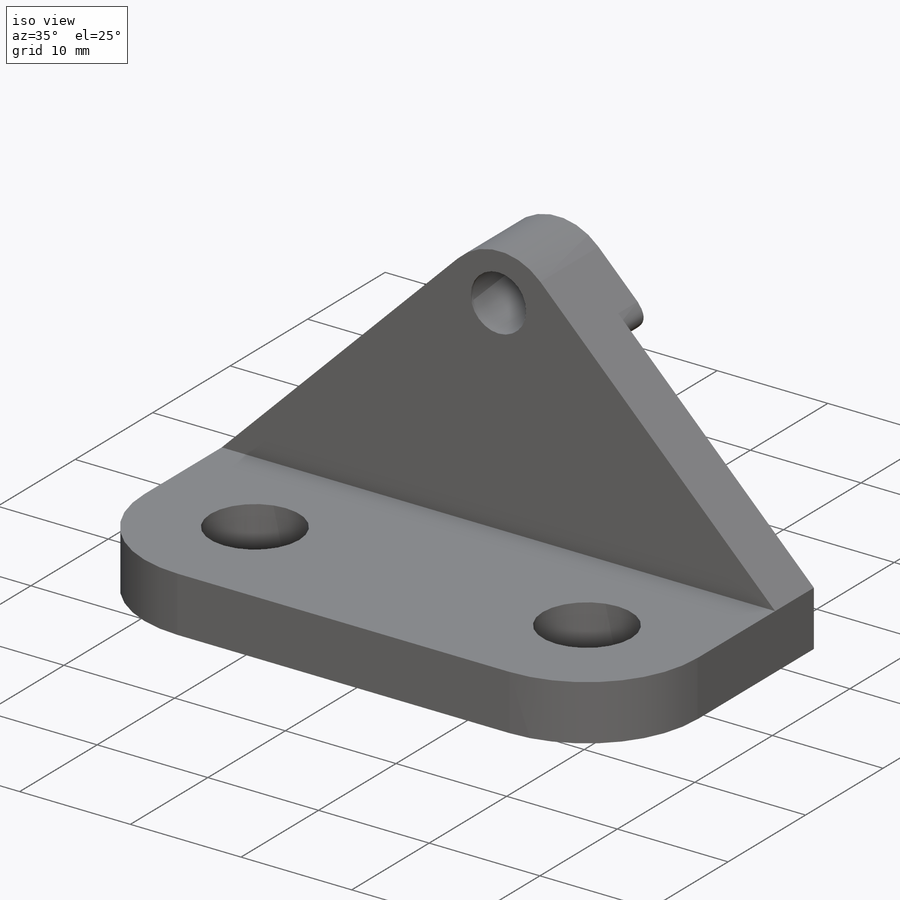
[diagram: iso view]
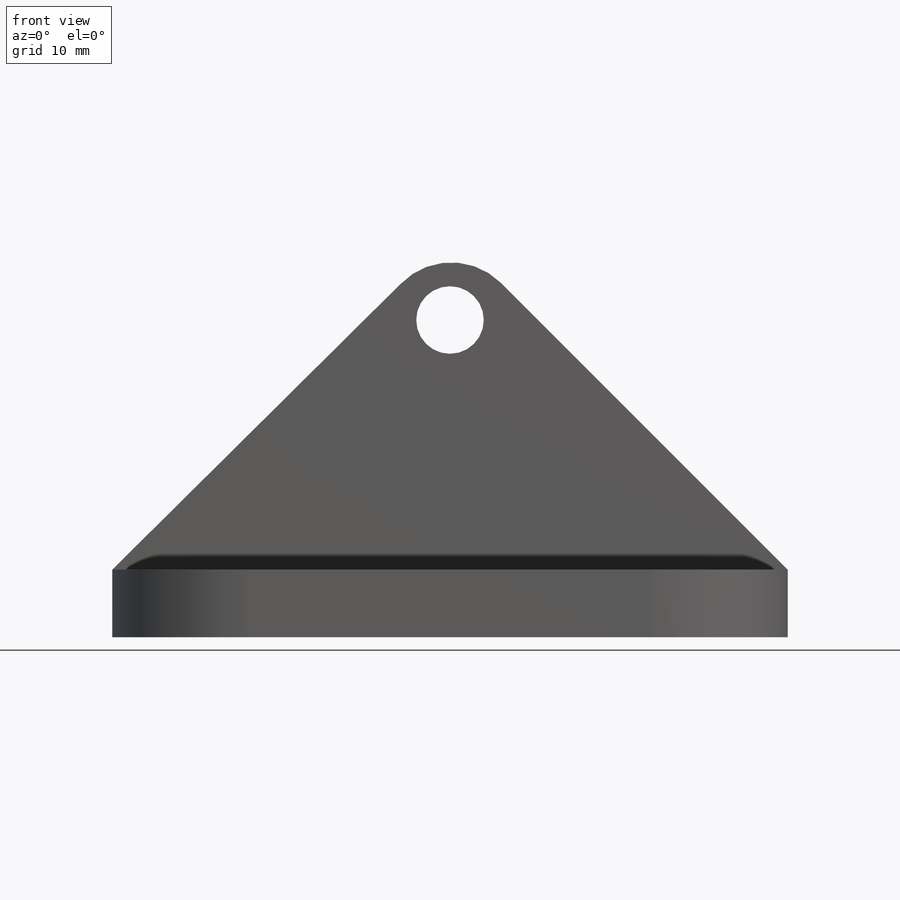
[diagram: front view]
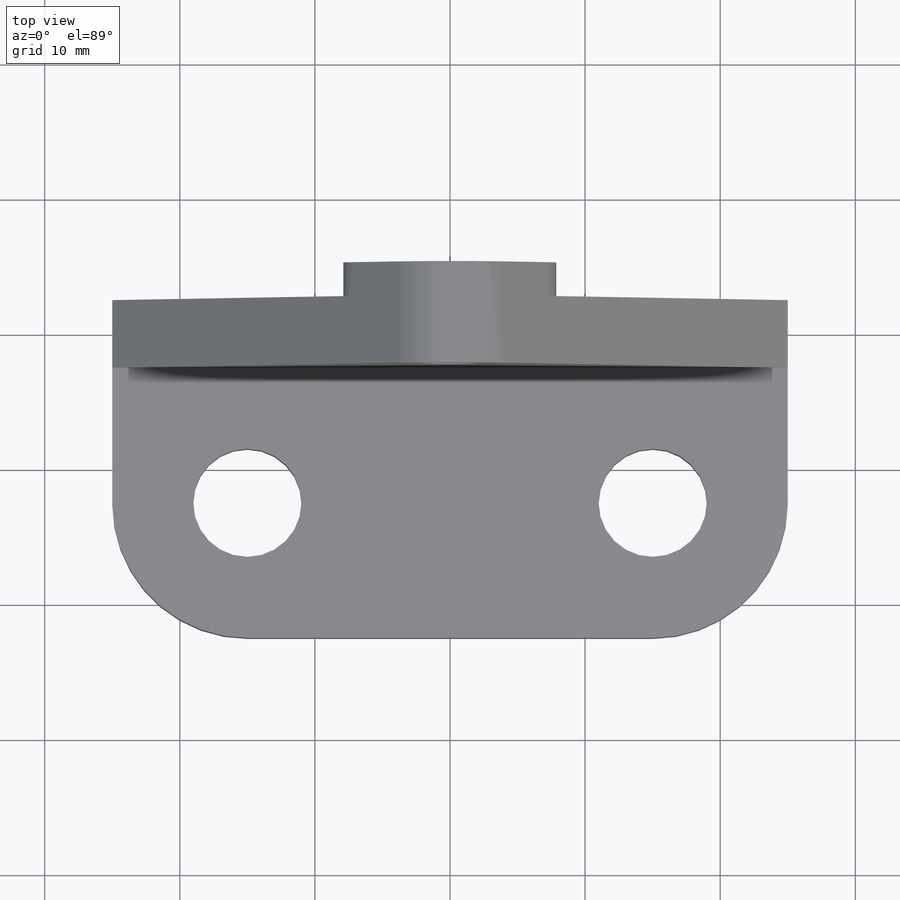
[diagram: top view]
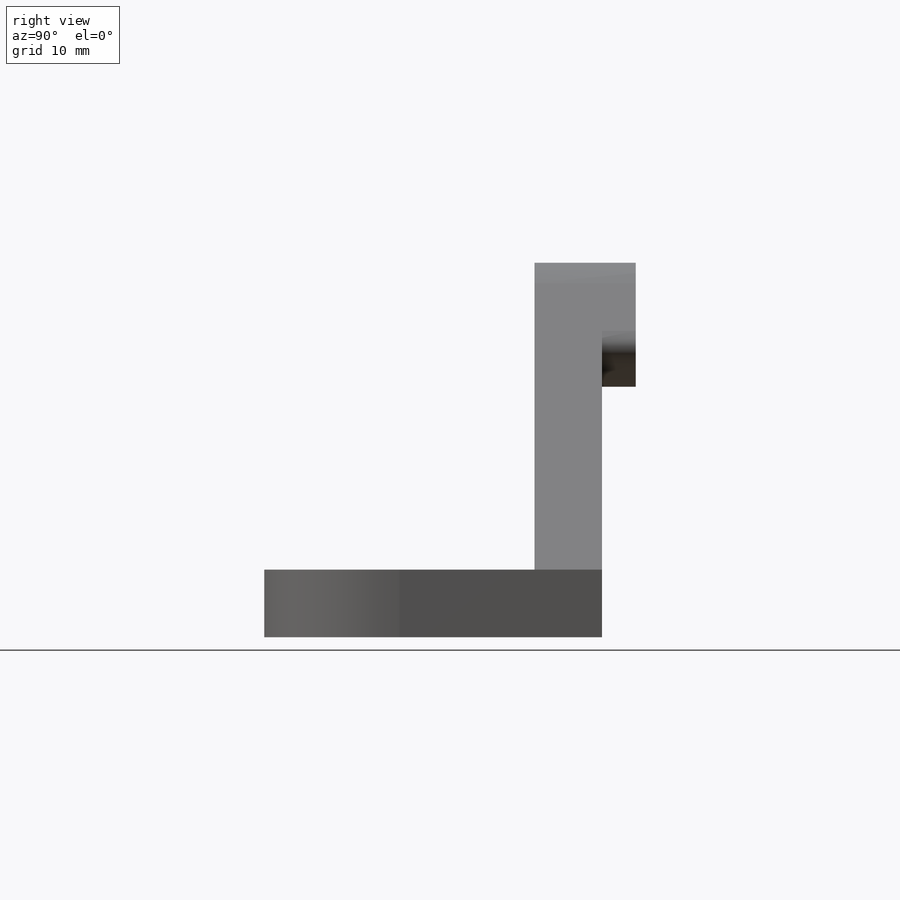
[diagram: right view]
SOLIDWORKS PART (.sldprt)
format: sldprt  version: not decoded by parser v0  size: 216,576 bytes
history: native  units: mm
features: sketch x5, extrude x3, cut_extrude x2, material x1, fillet x1 (+13 scaffold rows collapsed)
feature tree (25):
  scaffold x13  (default folders/planes/origin — collapsed)
  material  "Material <not specified>"
  sketch  "Sketch1"  dims[c1.D3=8.0mm c1.D4=8.0mm c1.D6=8.0mm c1.D5=8.0mm c2.D3=8.0mm c2.D4=8.0mm c2.D5=8.0mm c2.D6=8.0mm c2.D7=8.0mm c2.D8=8.0mm c2.D1=25.0mm c2.D2=50.0mm c3.D5=5.0mm c3.D6=10.0mm c4.D5=5.0mm c4.D6=2.5mm c4.D4=10.0mm c5.D5=10.0mm c5.D7=10.0mm c5.D8=10.0mm]
  extrude  "Boss-Extrude1"  Depth=5mm
  fillet  "Fillet1"  Radius=10mm
  sketch  "Sketch8"  dims[c1.D1=30.0mm c1.D2=30.0mm c1.D3=30.0mm c2.D2=30.0mm c2.D3=0.0mm]
  extrude  "Boss-Extrude3"  Depth=5mm
  sketch  "Sketch9"  dims[D3=3.0mm D4=3.0mm D1=5.0mm D2=5.0mm]
  extrude  "Boss-Extrude4"  Depth=2.5mm
  sketch  "Sketch10"  dims[D1=5.0mm]
  cut_extrude  "Cut-Extrude1"  [1 undecoded]
  sketch  "Sketch11"  dims[D1=5.5mm]
  cut_extrude  "Cut-Extrude3"  Depth=7.25mm
decode coverage: 10 of 11 modeling features carry decoded parameters
note: 1 parameter value undecoded
note: suppression state not decoded; provenance and decode notes live in map.json
